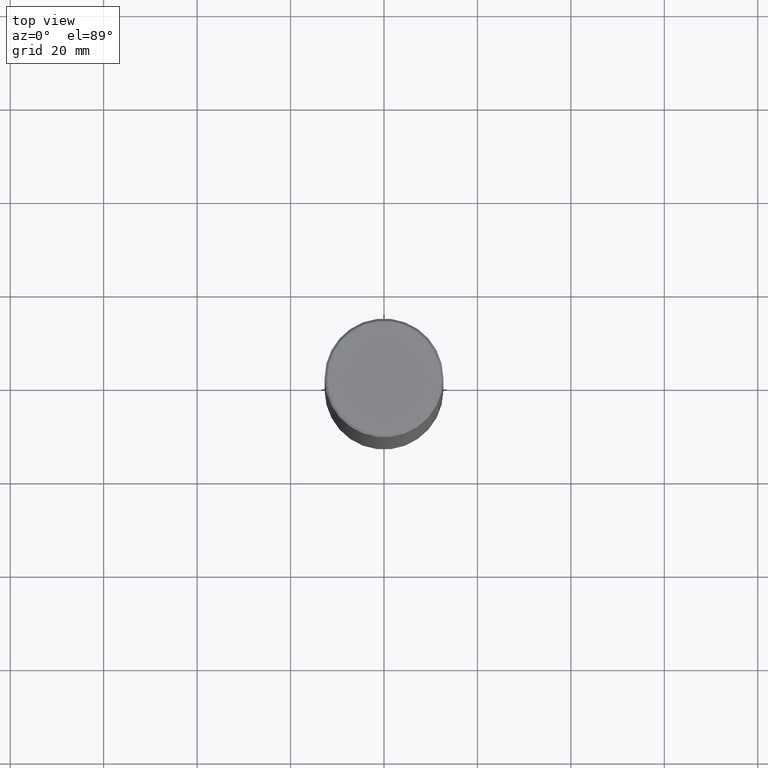
[diagram: clean part render]
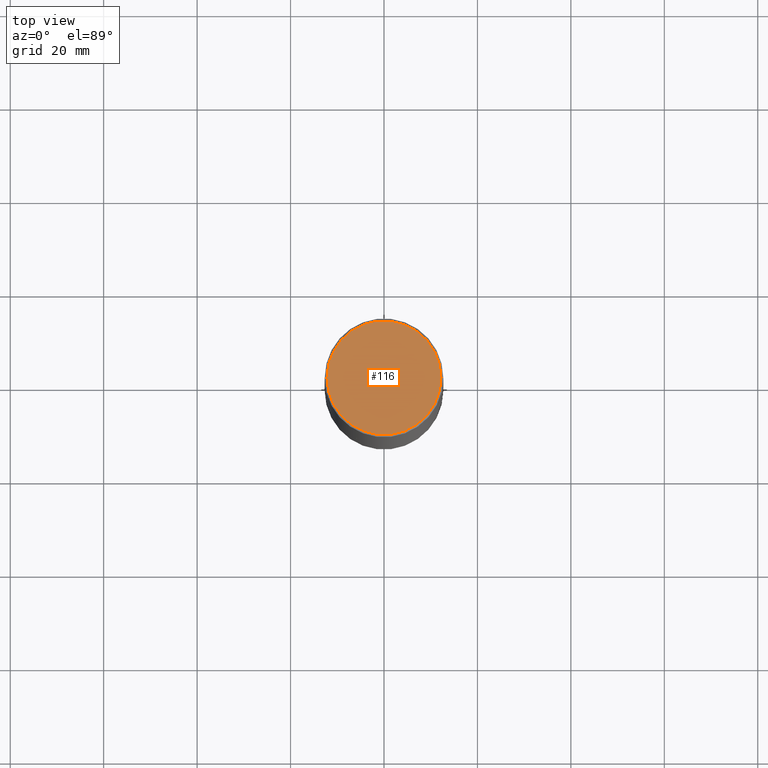
[diagram: same view with one face highlighted and labeled with its STEP entity id]
A machine part, top view. The second image highlights one B-rep face of the part: STEP entity #116.
In plain terms, the highlighted planar face has unit normal (0, -0, -1).
Its self-contained STEP definition (entity closure, byte-faithful):
#12 = DIRECTION ( 'NONE',  ( 1.000000000000000000, -6.982962677686266711E-15, 4.876036955247133888E-29 ) ) ;
#13 = EDGE_CURVE ( 'NONE', #52, #155, #196, .T. ) ;
#24 = AXIS2_PLACEMENT_3D ( 'NONE', #192, #224, #81 ) ;
#26 = FACE_OUTER_BOUND ( 'NONE', #278, .T. ) ;
#52 = VERTEX_POINT ( 'NONE', #135 ) ;
#69 = CARTESIAN_POINT ( 'NONE',  ( 3.351822085289404392E-15, 0.4799999999999995381, -1.669508273909557670E-15 ) ) ;
#81 = DIRECTION ( 'NONE',  ( 1.000000000000000000, -6.982962677686266711E-15, 4.876036955247133888E-29 ) ) ;
#82 = AXIS2_PLACEMENT_3D ( 'NONE', #123, #244, #12 ) ;
#101 = ORIENTED_EDGE ( 'NONE', *, *, #241, .T. ) ;
#116 = ADVANCED_FACE ( 'NONE', ( #26 ), #236, .F. ) ;
#123 = CARTESIAN_POINT ( 'NONE',  ( -3.131554243005659264E-46, 4.471029511141341874E-32, 1.280553747030123384E-17 ) ) ;
#135 = CARTESIAN_POINT ( 'NONE',  ( -0.4799999999999995381, 3.386736898677835647E-15, 1.280553747027767124E-17 ) ) ;
#155 = VERTEX_POINT ( 'NONE', #338 ) ;
#192 = CARTESIAN_POINT ( 'NONE',  ( -3.131554243005659264E-46, 4.471029511141341874E-32, 1.280553747030123384E-17 ) ) ;
#193 = AXIS2_PLACEMENT_3D ( 'NONE', #69, #308, #242 ) ;
#196 = CIRCLE ( 'NONE', #24, 0.4799999999999995381 ) ;
#224 = DIRECTION ( 'NONE',  ( -2.445468806185136597E-29, 3.491481338843145583E-15, 1.000000000000000000 ) ) ;
#236 = PLANE ( 'NONE',  #193 ) ;
#241 = EDGE_CURVE ( 'NONE', #155, #52, #267, .T. ) ;
#242 = DIRECTION ( 'NONE',  ( -1.000000000000000000, 6.982962677686265922E-15, -4.876176775795935793E-29 ) ) ;
#244 = DIRECTION ( 'NONE',  ( -2.445468806185136597E-29, 3.491481338843145583E-15, 1.000000000000000000 ) ) ;
#267 = CIRCLE ( 'NONE', #82, 0.4799999999999995381 ) ;
#278 = EDGE_LOOP ( 'NONE', ( #312, #101 ) ) ;
#308 = DIRECTION ( 'NONE',  ( 2.438088387897960049E-29, -3.491481338843145188E-15, -1.000000000000000000 ) ) ;
#312 = ORIENTED_EDGE ( 'NONE', *, *, #13, .T. ) ;
#338 = CARTESIAN_POINT ( 'NONE',  ( 0.4799999999999995381, -3.396558832296479338E-15, 1.280553747032483033E-17 ) ) ;